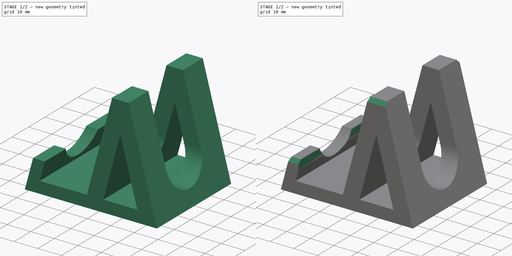
[diagram: build sequence overview — one tinted view per stage of 2, left to right]
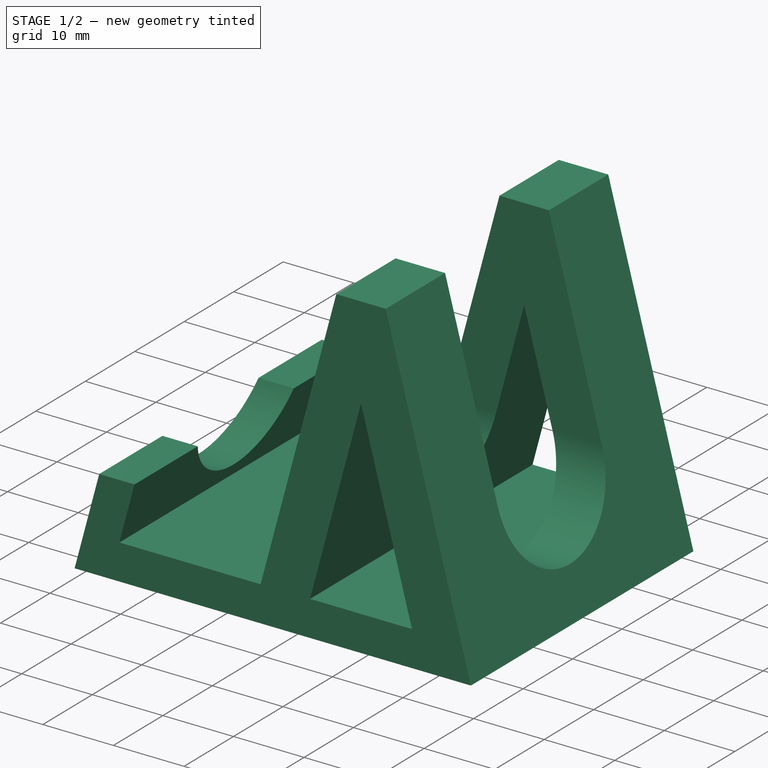
[diagram: stage 1 of 2 — iso view after this stage's code; geometry added in this stage tinted green]
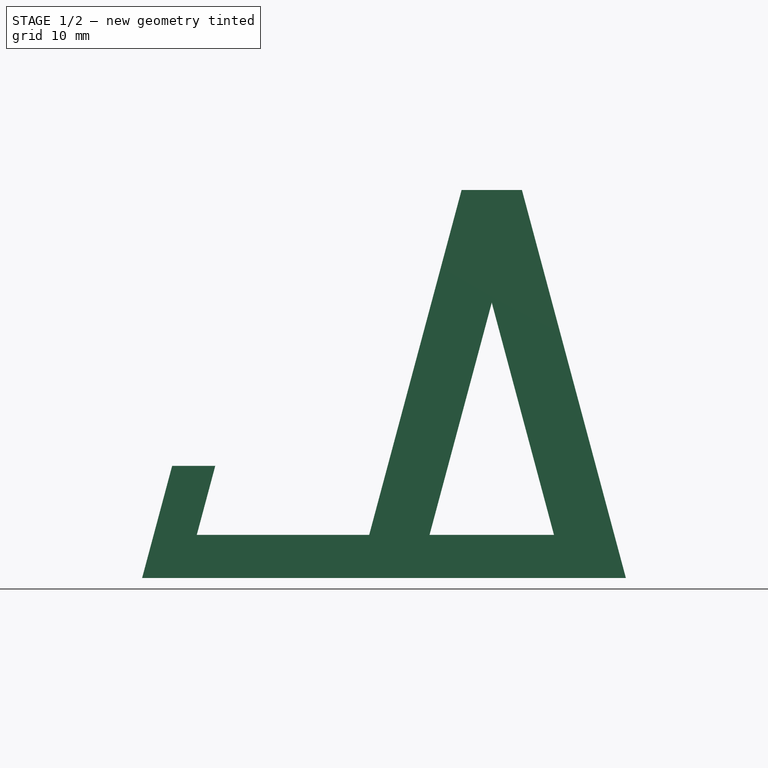
[diagram: stage 1 of 2 — front view after this stage's code; geometry added in this stage tinted green]
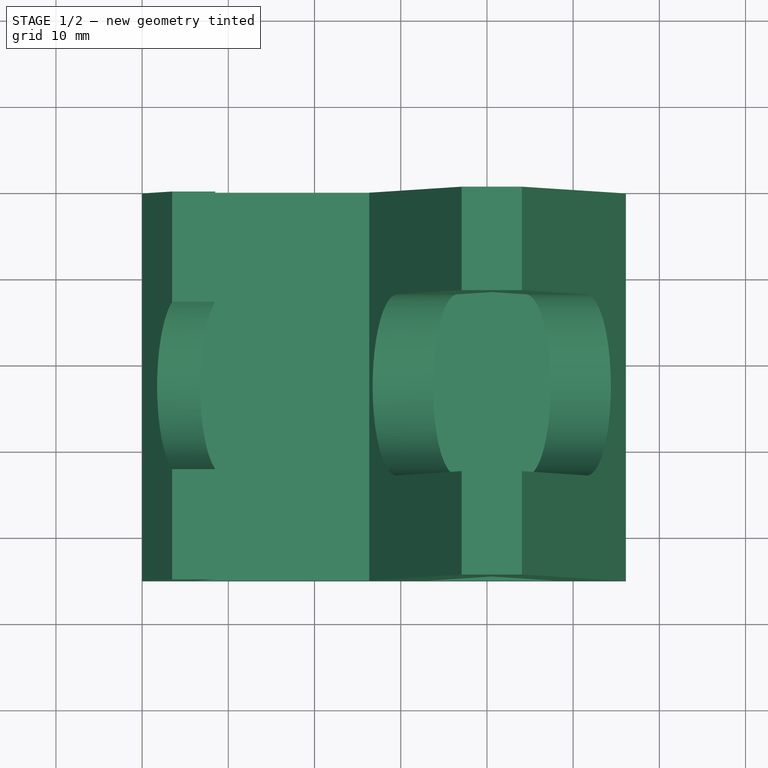
[diagram: stage 1 of 2 — top view after this stage's code; geometry added in this stage tinted green]
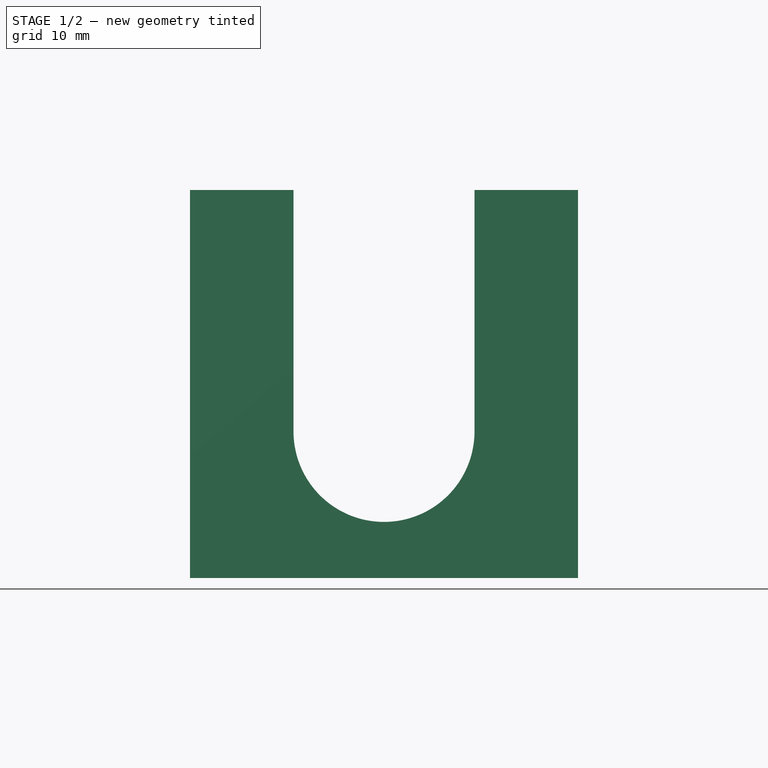
[diagram: stage 1 of 2 — right view after this stage's code; geometry added in this stage tinted green]
FCSTD DOCUMENT  (FreeCAD 0.19R22262 (Git))
Label: handyhalter_megi
License: All rights reserved
LicenseURL: http://en.wikipedia.org/wiki/All_rights_reserved
objects: Sketcher::SketchObject×3, PartDesign::Pocket×2, PartDesign::Pad×1, PartDesign::Chamfer×1, PartDesign::Body×1
note: 12 computed .brp shape members not serialized (recipe doc carries the construction recipe); baked Part::Feature solids carry a one-line shape summary decoded from their .brp

FEATURE [Sketcher::SketchObject] Sketch
  MapMode = 5
  Placement = pos=(0,0,0) rot=(1,0,0;1.5708rad)
  Support = -> [XZ_Plane]
  sketch-geometry (17):
    g0: LineSegment StartX=-4e-16 StartY=0 StartZ=0 EndX=56.1154 EndY=0 EndZ=0
    g1: LineSegment StartX=33.3397 StartY=5 StartZ=0 EndX=40.5577 EndY=31.9378 EndZ=0
    g2: LineSegment StartX=44.0577 StartY=45 StartZ=0 EndX=37.0577 EndY=45 EndZ=0
    g3: LineSegment StartX=37.0577 StartY=45 StartZ=0 EndX=26.3397 EndY=5 EndZ=0
    g4: LineSegment StartX=26.3397 StartY=5 StartZ=0 EndX=6.33975 EndY=5 EndZ=0
    g5: LineSegment StartX=6.33975 StartY=5 StartZ=0 EndX=8.48334 EndY=13 EndZ=0
    g6: LineSegment StartX=8.48334 StartY=13 StartZ=0 EndX=3.48334 EndY=13 EndZ=0
    g7: LineSegment StartX=3.48334 StartY=13 StartZ=0 EndX=-4e-16 EndY=0 EndZ=0
    g8: GeomPoint X=47.7757 Y=5 Z=0
    g9: GeomPoint X=40.5577 Y=31.9378 Z=0
    g10: LineSegment StartX=47.7757 StartY=5 StartZ=0 EndX=40.5577 EndY=31.9378 EndZ=0
    g11: GeomPoint X=56.1154 Y=0 Z=0
    g12: GeomPoint X=44.0577 Y=45 Z=0
    g13: LineSegment StartX=56.1154 StartY=0 StartZ=0 EndX=44.0577 EndY=45 EndZ=0
    g14: LineSegment StartX=44.0577 StartY=45 StartZ=0 EndX=44.0577 EndY=45 EndZ=0
    g15: LineSegment StartX=47.7757 StartY=5 StartZ=0 EndX=33.3397 EndY=5 EndZ=0
    g16: LineSegment [constr] StartX=47.7757 StartY=5 StartZ=0 EndX=54.7757 EndY=5 EndZ=0
  constraints (42):
    c: Horizontal(g0)
    c: Coincident(g15,g1)
    c: Coincident(g14,g2)
    c: Horizontal(g2)
    c: Coincident(g2,g3)
    c: Coincident(g3,g4)
    c: Coincident(g4,g5)
    c: Coincident(g5,g6)
    c: Coincident(g6,g7)
    c: Coincident(g7,g0)
    c: Coincident(g0,g-1)
    c: Parallel(g7,g5)
    c: Parallel(g5,g3)
    c: Parallel(g3,g1)
    c: Horizontal(g6)
    c: Horizontal(g4)
    c: DistanceX(g4,g4) = 20
    c: Horizontal(g3,g15)
    c: DistanceX(g6,g6) = 5
    c: DistanceY(g15,g2) = 40
    c: DistanceY(g4,g5) = 8
    c: Angle(g0,g7) = 1.309
    c: DistanceX(g2,g2) = 7
    c: PointOnObject(g9,g1)
    c: Coincident(g10,g8)
    c: Coincident(g10,g9)
    c: Coincident(g13,g11)
    c: Coincident(g13,g12)
    c: PointOnObject(g1,g10)
    c: PointOnObject(g14,g13)
    c: Tangent(g1,g14)
    c: PointOnObject(g16,g13)
    c: Parallel(g10,g13)
    c: Coincident(g16,g8)
    c: Equal(g16,g2)
    c: Equal(g1,g10)
    c: Coincident(g12,g2)
    c: DistanceY(g0,g4) = 5
    c: Coincident(g11,g0)
    c: Coincident(g15,g8)
    c: Horizontal(g15)
    c: Horizontal(g16)
FEATURE [PartDesign::Pad] Pad
  Length = 45
  Length2 = 100
  Placement = pos=(0,0,0) rot=(1,0,0;1.5708rad)
  Profile = -> Sketch
  Refine = true
  Type = 0
FEATURE [Sketcher::SketchObject] Sketch001
  ExternalGeometry = -> [Pad]
  MapMode = 5
  Placement = pos=(0,0,0) rot=(0.57735,0.57735,0.57735;2.0944rad)
  Support = -> [YZ_Plane]
  sketch-geometry (8):
    g0: LineSegment StartX=-33 StartY=63.8255 StartZ=0 EndX=-12 EndY=63.8255 EndZ=0
    g1: LineSegment StartX=-12 StartY=63.8255 StartZ=0 EndX=-12 EndY=17 EndZ=0
    g2: ArcOfCircle CenterX=-22.5 CenterY=17 CenterZ=0 NormalX=0 NormalY=0 NormalZ=1 AngleXU=0 Radius=10.5 StartAngle=3.14159 EndAngle=6.28319
    g3: LineSegment StartX=-33 StartY=17 StartZ=0 EndX=-33 EndY=63.8255 EndZ=0
    g4: GeomPoint X=-22.5 Y=5 Z=0
    g5: GeomPoint X=-22.5 Y=6.5 Z=0
    g6: LineSegment [constr] StartX=-22.5 StartY=6.5 StartZ=0 EndX=-33 EndY=17 EndZ=0
    g7: LineSegment [constr] StartX=-12 StartY=17 StartZ=0 EndX=-22.5 EndY=6.5 EndZ=0
  constraints (17):
    c: Horizontal(g0)
    c: Coincident(g0,g1)
    c: Tangent(g1,g2) = 1.5708
    c: Tangent(g2,g3) = 1.5708
    c: Coincident(g3,g0)
    c: Vertical(g3)
    c: Vertical(g1)
    c: Symmetric(g-3,g-3,g4)
    c: Vertical(g2,g4)
    c: DistanceX(g1,g-3) = 12
    c: PointOnObject(g5,g2)
    c: Coincident(g6,g5)
    c: Coincident(g6,g2)
    c: Coincident(g7,g1)
    c: Coincident(g7,g5)
    c: Equal(g6,g7)
    c: DistanceY(g4,g5) = 1.5
FEATURE [PartDesign::Pocket] Pocket
  BaseFeature = -> Pad
  Length = 5
  Length2 = 100
  Placement = pos=(0,0,0) rot=(1,0,0;1.5708rad)
  Profile = -> Sketch001
  Refine = true
  Reversed = true
  Type = 1
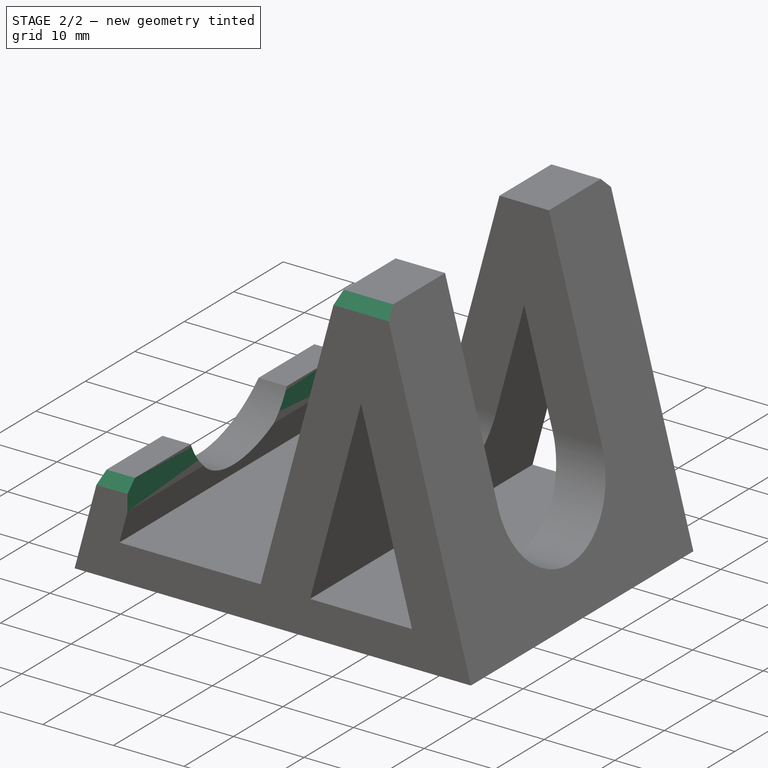
[diagram: stage 2 of 2 — iso view after this stage's code; geometry added in this stage tinted green]
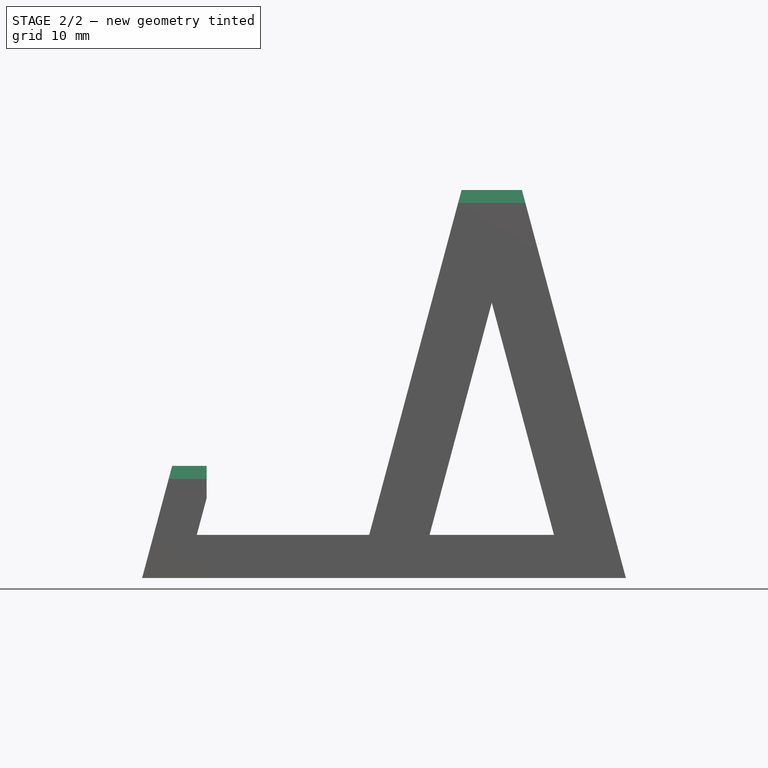
[diagram: stage 2 of 2 — front view after this stage's code; geometry added in this stage tinted green]
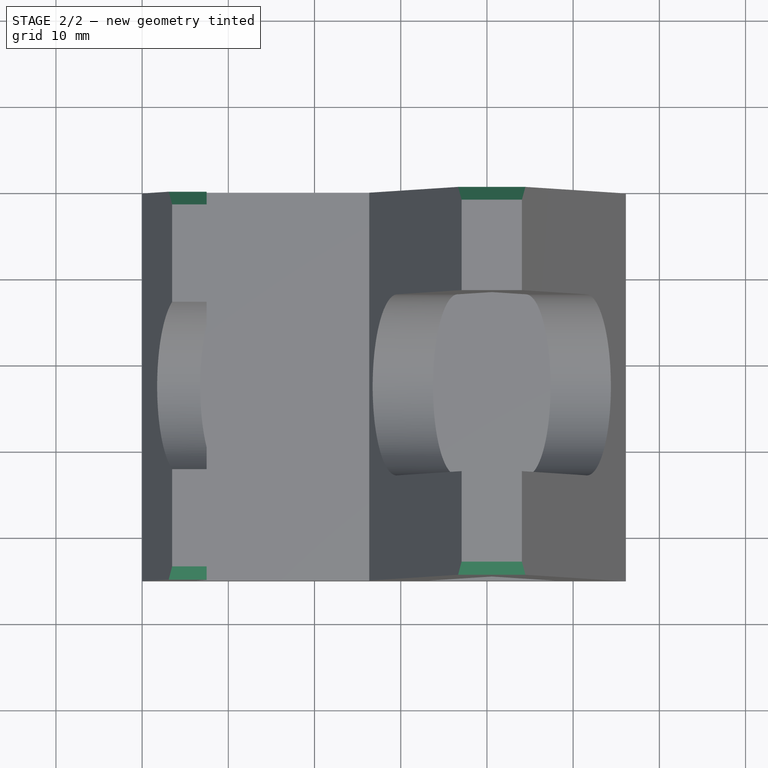
[diagram: stage 2 of 2 — top view after this stage's code; geometry added in this stage tinted green]
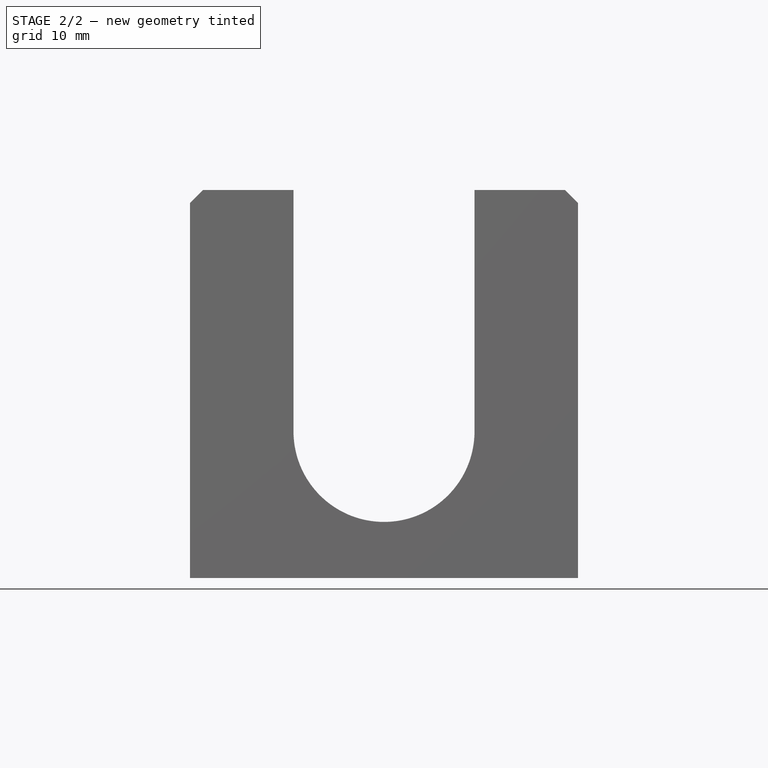
[diagram: stage 2 of 2 — right view after this stage's code; geometry added in this stage tinted green]
FEATURE [Sketcher::SketchObject] Sketch002
  ExternalGeometry = -> [Pocket]
  MapMode = 5
  Placement = pos=(0,-45,2.49e-14) rot=(1,0,0;1.5708rad)
  Support = -> [Pocket]
  sketch-geometry (4):
    g0: LineSegment StartX=7.48334 StartY=15 StartZ=0 EndX=17.4833 EndY=15 EndZ=0
    g1: LineSegment StartX=17.4833 StartY=15 StartZ=0 EndX=17.4833 EndY=5 EndZ=0
    g2: LineSegment StartX=17.4833 StartY=5 StartZ=0 EndX=7.48334 EndY=5 EndZ=0
    g3: LineSegment StartX=7.48334 StartY=5 StartZ=0 EndX=7.48334 EndY=15 EndZ=0
  constraints (12):
    c: Coincident(g0,g1)
    c: Coincident(g1,g2)
    c: Coincident(g2,g3)
    c: Coincident(g3,g0)
    c: Horizontal(g0)
    c: Horizontal(g2)
    c: Vertical(g1)
    c: Vertical(g3)
    c: DistanceX(g-4,g2) = 4
    c: Horizontal(g2,g-3)
    c: Equal(g0,g1)
    c: DistanceX(g0,g0) = 10
FEATURE [PartDesign::Pocket] Pocket001
  BaseFeature = -> Pocket
  Length = 5
  Length2 = 100
  Placement = pos=(0,0,0) rot=(1,0,0;1.5708rad)
  Profile = -> Sketch002
  Refine = true
  Type = 1
FEATURE [PartDesign::Chamfer] Chamfer
  Angle = 45
  Base = -> Pocket001 [Edge31,Edge22,Edge17,Edge26]
  BaseFeature = -> Pocket001
  ChamferType = 0
  FlipDirection = false
  Placement = pos=(0,0,0) rot=(1,0,0;1.5708rad)
  Refine = true
  Size = 1.5
  Size2 = 1
  SupportTransform = false
FEATURE [PartDesign::Body] Body
  Group = -> [Sketch,Pad,Sketch001,Pocket,Sketch002,Pocket001,Chamfer]
  Origin = -> Origin
  Tip = -> Chamfer
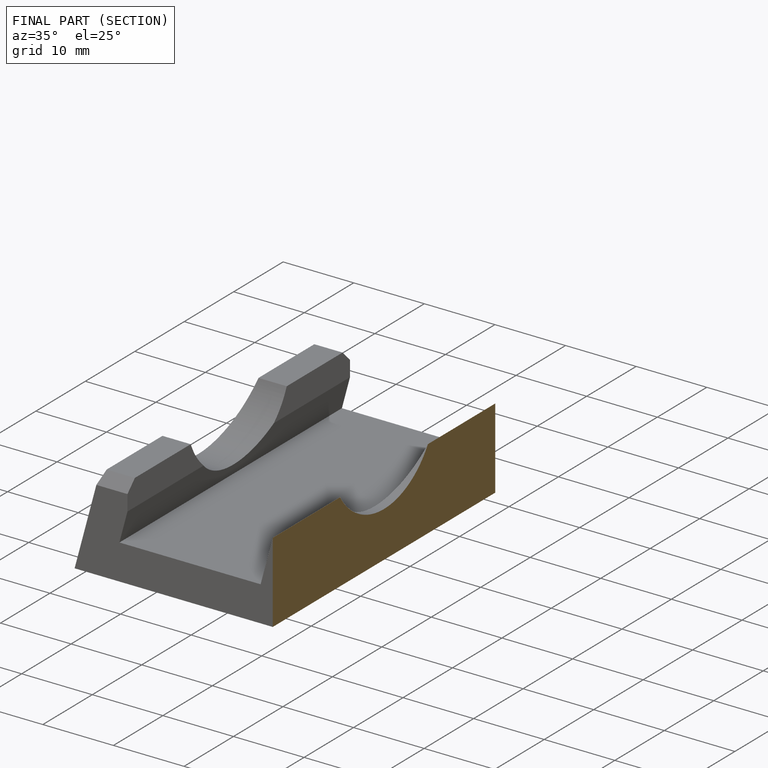
[diagram: finished part — half-section view (interior)]
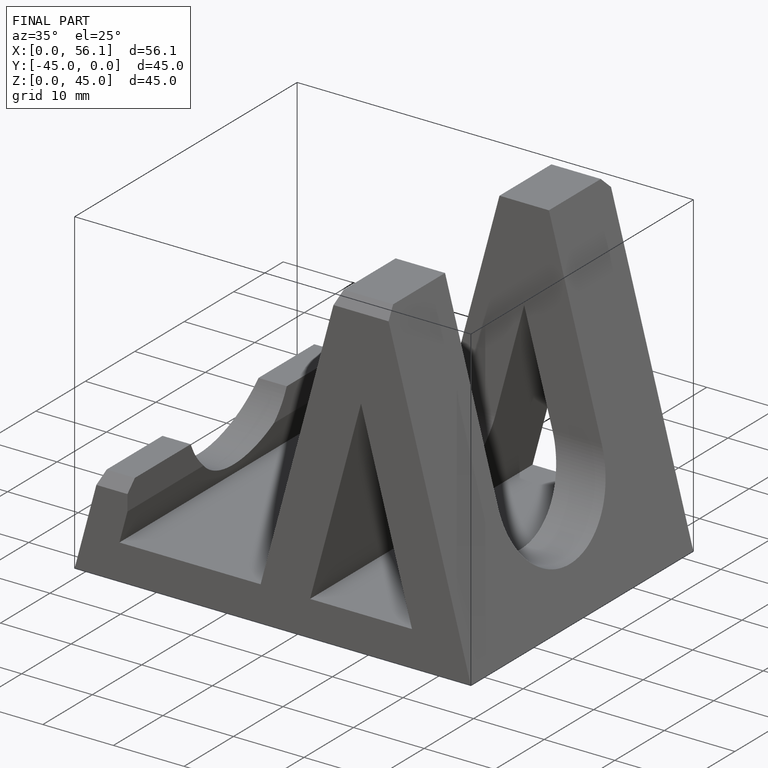
[diagram: finished part — iso view with bounding-box wireframe]
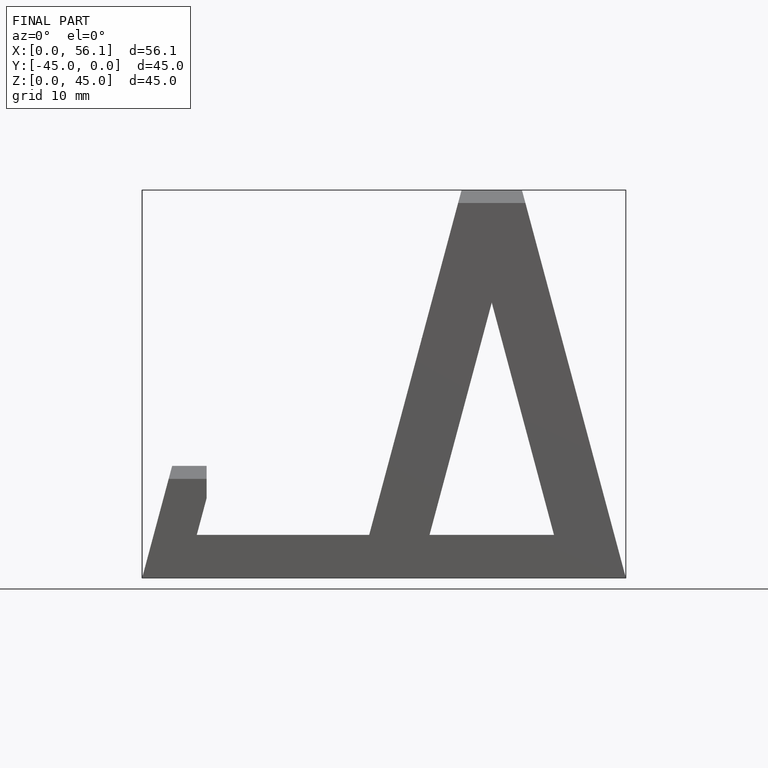
[diagram: finished part — front view with bounding-box wireframe]
